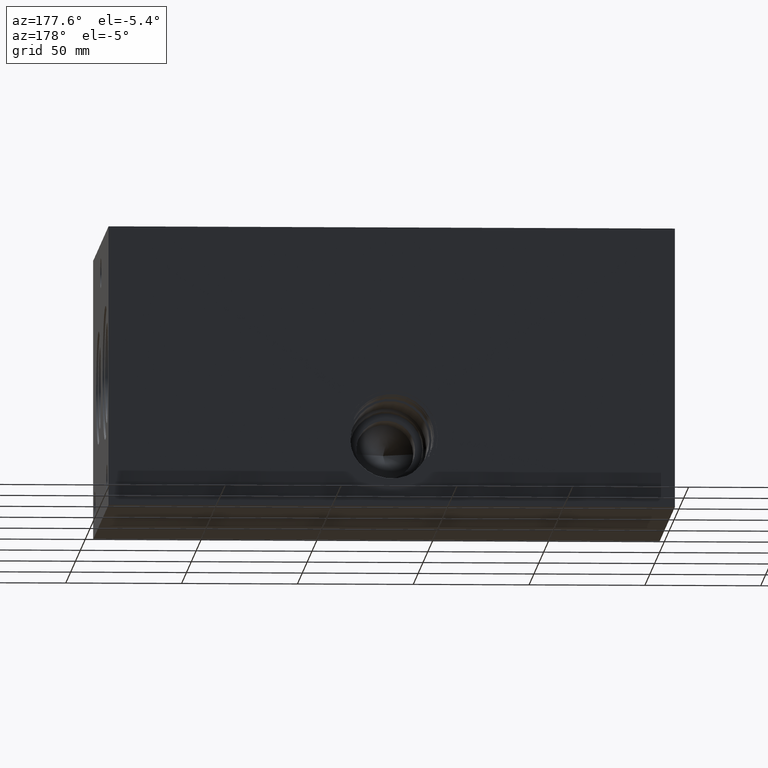
[diagram: clean part render]
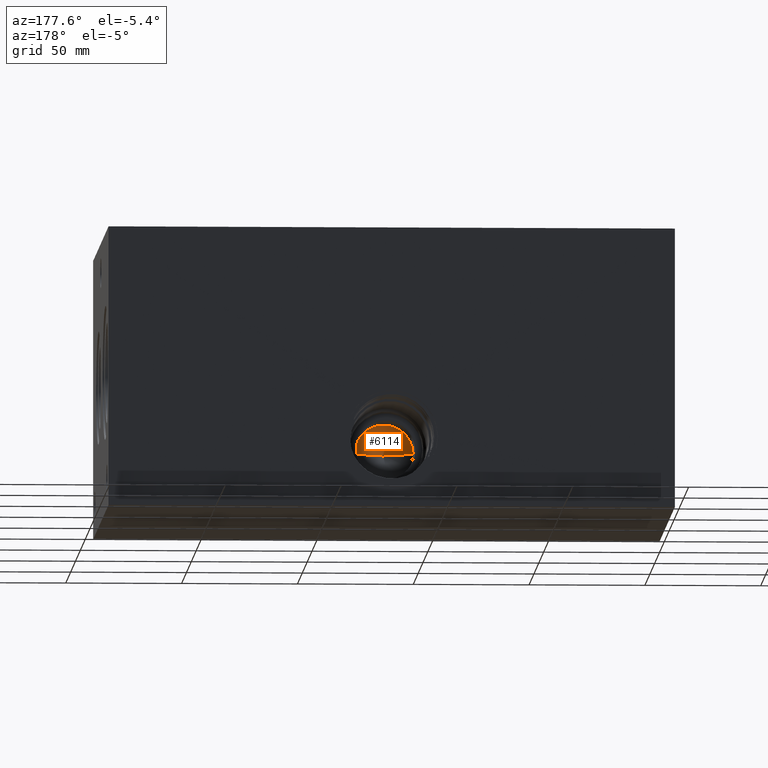
[diagram: same view with one face highlighted and labeled with its STEP entity id]
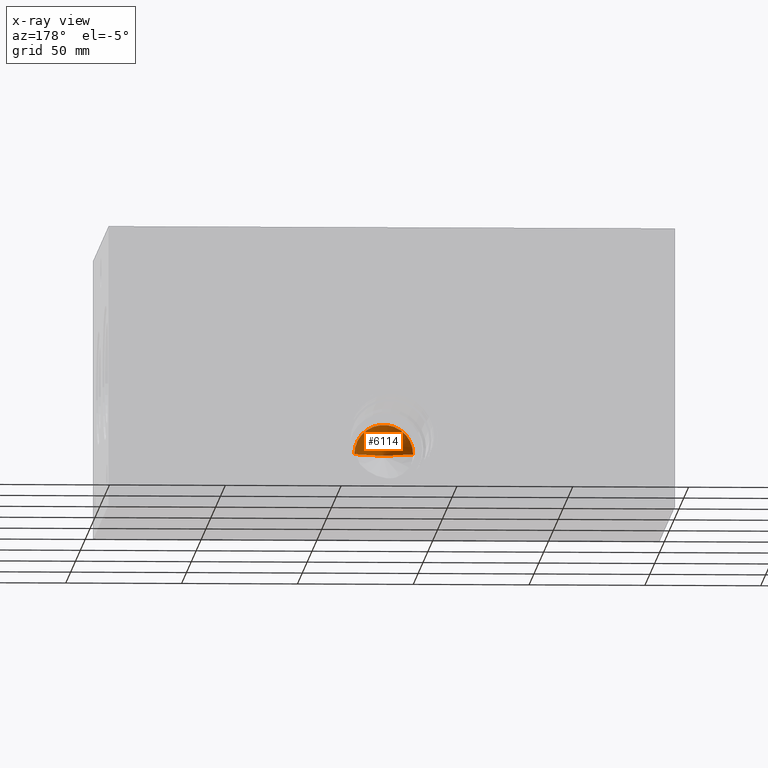
[diagram: x-ray of the same camera — body ghosted, the highlighted face saturated]
A machine part, auxiliary view. The second image highlights one B-rep face of the part: STEP entity #6114.
The next image is the same camera in x-ray: the body ghosted, the highlighted face saturated — about 0% of this face is hidden behind the body in this view.
In plain terms, the highlighted conical surface has half-angle 60 deg.
Its self-contained STEP definition (entity closure, byte-faithful):
#6071=CARTESIAN_POINT('',(5.311999999999999,2.993132486540520,1.188000000000000));
#6072=VERTEX_POINT('',#6071);
#6073=CARTESIAN_POINT('',(4.311999999999999,2.993132486540520,1.188000000000000));
#6074=VERTEX_POINT('',#6073);
#6075=CARTESIAN_POINT('',(4.812000000000000,2.993132486540520,1.188000000000000));
#6076=DIRECTION('',(0.0,-1.0,0.0));
#6077=DIRECTION('',(0.0,0.0,-1.0));
#6078=AXIS2_PLACEMENT_3D('',#6075,#6076,#6077);
#6079=CIRCLE('',#6078,0.500000000000000);
#6080=EDGE_CURVE('',#6072,#6074,#6079,.T.);
#6092=CARTESIAN_POINT('',(4.812000000000000,3.281807621135333,1.188000000000000));
#6093=DIRECTION('',(0.0,1.0,0.0));
#6094=DIRECTION('',(0.0,0.0,-1.0));
#6095=AXIS2_PLACEMENT_3D('',#6092,#6093,#6094);
#6096=CONICAL_SURFACE('',#6095,1.000000000000000,59.999999999999993);
#6097=CARTESIAN_POINT('',(4.812000000000000,2.704457351945710,1.188000000000000));
#6098=VERTEX_POINT('',#6097);
#6099=CARTESIAN_POINT('',(4.311999999999999,2.993132486540520,1.188000000000000));
#6100=DIRECTION('',(0.866025403784441,-0.499999999999996,0.0));
#6101=VECTOR('',#6100,0.577350269189625);
#6102=LINE('',#6099,#6101);
#6103=EDGE_CURVE('',#6074,#6098,#6102,.T.);
#6104=ORIENTED_EDGE('',*,*,#6103,.F.);
#6105=ORIENTED_EDGE('',*,*,#6080,.F.);
#6106=CARTESIAN_POINT('',(4.812000000000000,2.704457351945710,1.188000000000000));
#6107=DIRECTION('',(0.866025403784440,0.499999999999997,0.0));
#6108=VECTOR('',#6107,0.577350269189624);
#6109=LINE('',#6106,#6108);
#6110=EDGE_CURVE('',#6098,#6072,#6109,.T.);
#6111=ORIENTED_EDGE('',*,*,#6110,.F.);
#6112=EDGE_LOOP('',(#6104,#6105,#6111));
#6113=FACE_OUTER_BOUND('',#6112,.T.);
#6114=ADVANCED_FACE('',(#6113),#6096,.F.);